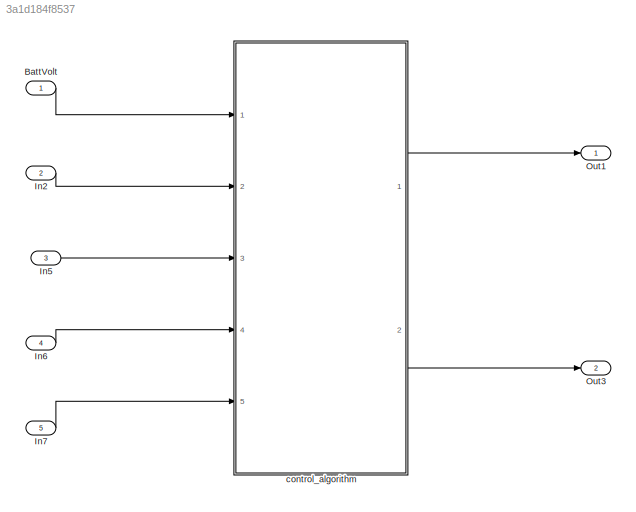
MODEL slx_3a1d184f8537
KIND model
CONFIG AbsTol = auto
CONFIG EnableMultiTasking = off
CONFIG FixedStep = auto
CONFIG MaxStep = auto
CONFIG MinStep = auto
CONFIG RelTol = 1e-3
CONFIG SampleTimeConstraint = Unconstrained
CONFIG SolverName = FixedStepAuto
CONFIG StartTime = 0.0
CONFIG StopTime = 10.0
BLOCK [Inport] BattVolt
BLOCK [Inport] In2
  Port = 2
BLOCK [Inport] In5
  Port = 3
BLOCK [Inport] In6
  Port = 4
BLOCK [Inport] In7
  Port = 5
BLOCK [Outport] Out1
BLOCK [Outport] Out3
  Port = 2
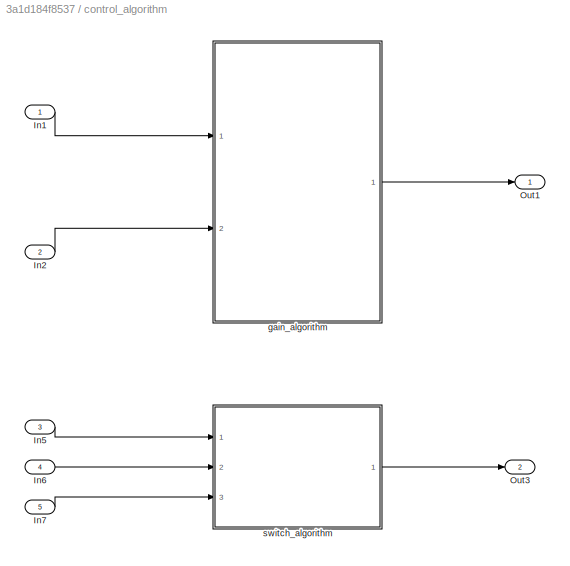
BLOCK [SubSystem] control_algorithm
  Ports = [5, 2]
  RequestExecContextInheritance = off
BLOCK [Inport] control_algorithm/In1
BLOCK [Inport] control_algorithm/In2
  Port = 2
BLOCK [Inport] control_algorithm/In5
  Port = 3
BLOCK [Inport] control_algorithm/In6
  Port = 4
BLOCK [Inport] control_algorithm/In7
  Port = 5
BLOCK [Outport] control_algorithm/Out1
BLOCK [Outport] control_algorithm/Out3
  Port = 2
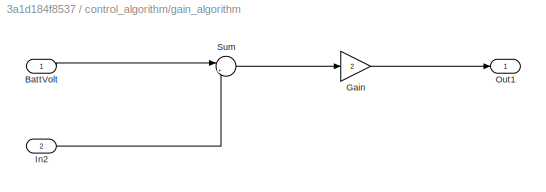
BLOCK [SubSystem] control_algorithm/gain_algorithm
  Ports = [2, 1]
  RequestExecContextInheritance = off
BLOCK [Inport] control_algorithm/gain_algorithm/BattVolt
BLOCK [Gain] control_algorithm/gain_algorithm/Gain
  Gain = 2
BLOCK [Inport] control_algorithm/gain_algorithm/In2
  Port = 2
BLOCK [Outport] control_algorithm/gain_algorithm/Out1
BLOCK [Sum] control_algorithm/gain_algorithm/Sum
  Inputs = |++
  Ports = [2, 1]
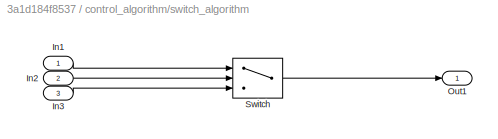
BLOCK [SubSystem] control_algorithm/switch_algorithm
  Ports = [3, 1]
  RequestExecContextInheritance = off
BLOCK [Inport] control_algorithm/switch_algorithm/In1
BLOCK [Inport] control_algorithm/switch_algorithm/In2
  Port = 2
BLOCK [Inport] control_algorithm/switch_algorithm/In3
  Port = 3
BLOCK [Outport] control_algorithm/switch_algorithm/Out1
BLOCK [Switch] control_algorithm/switch_algorithm/Switch
  Criteria = u2 > Threshold
  InputSameDT = off
  SaturateOnIntegerOverflow = off
LINE BattVolt:1 -> control_algorithm:1
LINE In2:1 -> control_algorithm:2
LINE In5:1 -> control_algorithm:3
LINE In6:1 -> control_algorithm:4
LINE In7:1 -> control_algorithm:5
LINE control_algorithm/In1:1 -> control_algorithm/gain_algorithm:1
LINE control_algorithm/In2:1 -> control_algorithm/gain_algorithm:2
LINE control_algorithm/In5:1 -> control_algorithm/switch_algorithm:1
LINE control_algorithm/In6:1 -> control_algorithm/switch_algorithm:2
LINE control_algorithm/In7:1 -> control_algorithm/switch_algorithm:3
LINE control_algorithm/gain_algorithm/BattVolt:1 -> control_algorithm/gain_algorithm/Sum:1
LINE control_algorithm/gain_algorithm/Gain:1 -> control_algorithm/gain_algorithm/Out1:1
LINE control_algorithm/gain_algorithm/In2:1 -> control_algorithm/gain_algorithm/Sum:2
LINE control_algorithm/gain_algorithm/Sum:1 -> control_algorithm/gain_algorithm/Gain:1
LINE control_algorithm/gain_algorithm:1 -> control_algorithm/Out1:1
LINE control_algorithm/switch_algorithm/In1:1 -> control_algorithm/switch_algorithm/Switch:1
LINE control_algorithm/switch_algorithm/In2:1 -> control_algorithm/switch_algorithm/Switch:2
LINE control_algorithm/switch_algorithm/In3:1 -> control_algorithm/switch_algorithm/Switch:3
LINE control_algorithm/switch_algorithm/Switch:1 -> control_algorithm/switch_algorithm/Out1:1
LINE control_algorithm/switch_algorithm:1 -> control_algorithm/Out3:1
LINE control_algorithm:1 -> Out1:1
LINE control_algorithm:2 -> Out3:1
